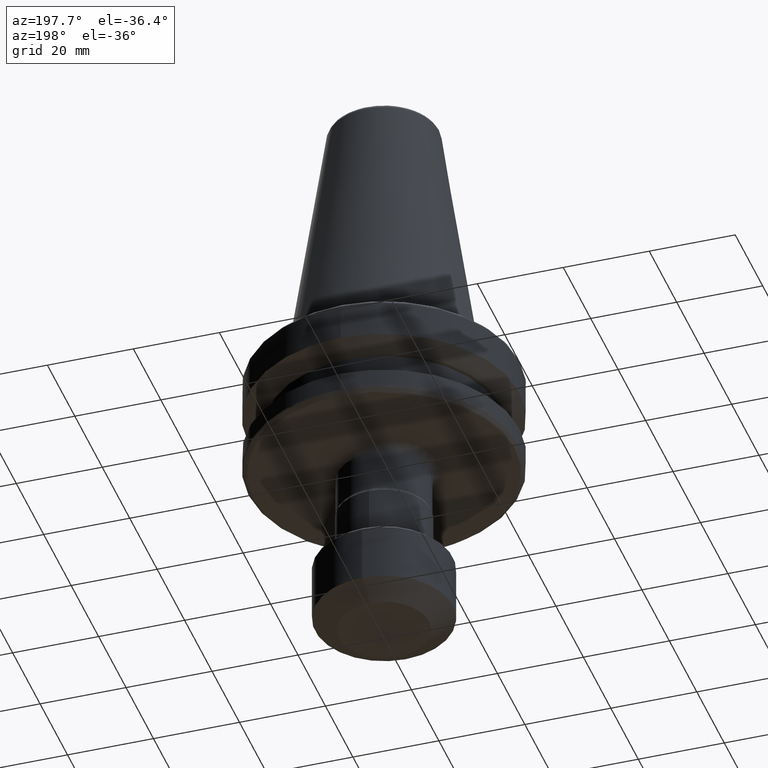
[diagram: clean part render]
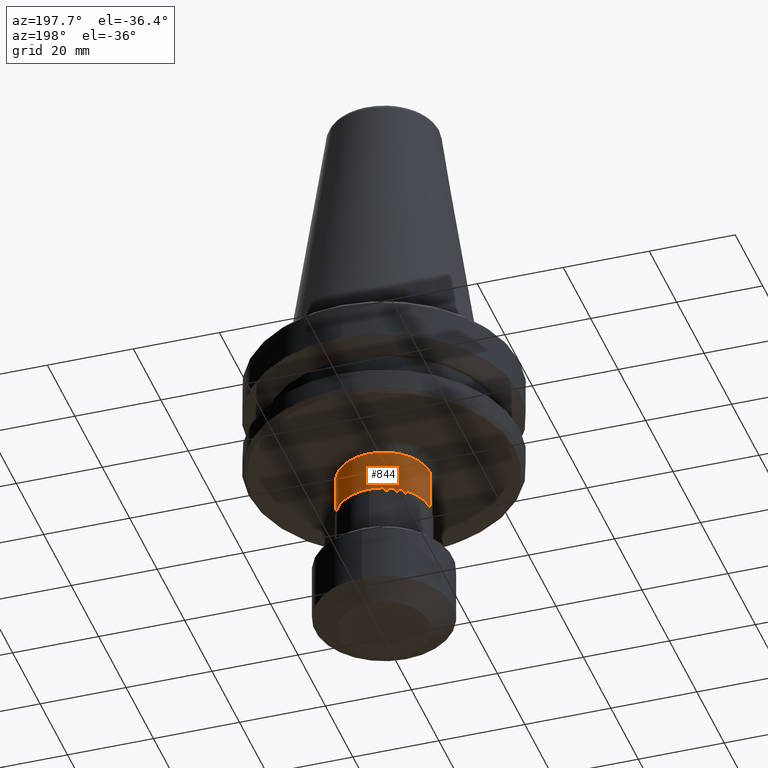
[diagram: same view with one face highlighted and labeled with its STEP entity id]
A machine part, auxiliary view. The second image highlights one B-rep face of the part: STEP entity #844.
In plain terms, the highlighted cylindrical surface (partial cylindrical patch) has radius 10.75 mm, axis along (0, 0, 1).
Its self-contained STEP definition (entity closure, byte-faithful):
#115 = AXIS2_PLACEMENT_3D ( 'NONE', #191, #714, #1899 ) ;
#169 = DIRECTION ( 'NONE',  ( 0.0000000000000000000, -1.000000000000000000, 6.454785026758301600E-016 ) ) ;
#191 = CARTESIAN_POINT ( 'NONE',  ( 0.0000000000000000000, 0.0000000000000000000, -28.99999999999999600 ) ) ;
#202 = EDGE_CURVE ( 'NONE', #1661, #1880, #1121, .T. ) ;
#250 = EDGE_CURVE ( 'NONE', #1880, #1417, #1134, .T. ) ;
#269 = CARTESIAN_POINT ( 'NONE',  ( -10.75000000016505700, -1.102430928269905100E-009, -38.74940395307352500 ) ) ;
#347 = DIRECTION ( 'NONE',  ( 0.0000000000000000000, 0.0000000000000000000, 1.000000000000000000 ) ) ;
#395 = CIRCLE ( 'NONE', #1580, 10.75000000022007600 ) ;
#427 = CARTESIAN_POINT ( 'NONE',  ( 10.74999999992037800, -9.652815056088801900E-010, -28.99999999972065400 ) ) ;
#604 = DIRECTION ( 'NONE',  ( 0.0000000000000000000, 0.0000000000000000000, 1.000000000000000000 ) ) ;
#689 = CYLINDRICAL_SURFACE ( 'NONE', #884, 10.75000000000000000 ) ;
#714 = DIRECTION ( 'NONE',  ( 0.0000000000000000000, 0.0000000000000000000, 1.000000000000000000 ) ) ;
#726 = LINE ( 'NONE', #2219, #745 ) ;
#745 = VECTOR ( 'NONE', #604, 1000.000000000000000 ) ;
#799 = CARTESIAN_POINT ( 'NONE',  ( 10.75000000016505700, -7.239611292091303600E-010, -38.74940395307348200 ) ) ;
#843 = FACE_OUTER_BOUND ( 'NONE', #1523, .T. ) ;
#844 = ADVANCED_FACE ( 'NONE', ( #843 ), #689, .T. ) ;
#864 = ORIENTED_EDGE ( 'NONE', *, *, #250, .F. ) ;
#884 = AXIS2_PLACEMENT_3D ( 'NONE', #1538, #1304, #2606 ) ;
#970 = CARTESIAN_POINT ( 'NONE',  ( 10.75000000000000000, 0.0000000000000000000, -38.74940395299999800 ) ) ;
#1121 = LINE ( 'NONE', #970, #1142 ) ;
#1134 = CIRCLE ( 'NONE', #115, 10.75000000000000000 ) ;
#1142 = VECTOR ( 'NONE', #347, 1000.000000000000000 ) ;
#1198 = EDGE_CURVE ( 'NONE', #2547, #1417, #726, .T. ) ;
#1255 = ORIENTED_EDGE ( 'NONE', *, *, #2106, .T. ) ;
#1266 = ORIENTED_EDGE ( 'NONE', *, *, #1198, .T. ) ;
#1304 = DIRECTION ( 'NONE',  ( 0.0000000000000000000, 0.0000000000000000000, 1.000000000000000000 ) ) ;
#1417 = VERTEX_POINT ( 'NONE', #2466 ) ;
#1523 = EDGE_LOOP ( 'NONE', ( #1255, #1266, #864, #1940 ) ) ;
#1538 = CARTESIAN_POINT ( 'NONE',  ( 0.0000000000000000000, 0.0000000000000000000, -38.74940395299999800 ) ) ;
#1580 = AXIS2_PLACEMENT_3D ( 'NONE', #2852, #1583, #169 ) ;
#1583 = DIRECTION ( 'NONE',  ( 0.0000000000000000000, 6.454785026920810900E-016, 1.000000000000000000 ) ) ;
#1661 = VERTEX_POINT ( 'NONE', #799 ) ;
#1880 = VERTEX_POINT ( 'NONE', #427 ) ;
#1899 = DIRECTION ( 'NONE',  ( 1.000000000000000000, 0.0000000000000000000, -3.227392513445222300E-016 ) ) ;
#1940 = ORIENTED_EDGE ( 'NONE', *, *, #202, .F. ) ;
#2106 = EDGE_CURVE ( 'NONE', #1661, #2547, #395, .T. ) ;
#2219 = CARTESIAN_POINT ( 'NONE',  ( -10.75000000000000000, 1.316495309083404800E-015, -38.74940395299999800 ) ) ;
#2466 = CARTESIAN_POINT ( 'NONE',  ( -10.74999999992037800, -3.307292784809715300E-009, -28.99999999972065400 ) ) ;
#2547 = VERTEX_POINT ( 'NONE', #269 ) ;
#2606 = DIRECTION ( 'NONE',  ( 1.000000000000000000, 0.0000000000000000000, 0.0000000000000000000 ) ) ;
#2852 = CARTESIAN_POINT ( 'NONE',  ( 0.0000000000000000000, 0.0000000000000000000, -38.74940395307339700 ) ) ;